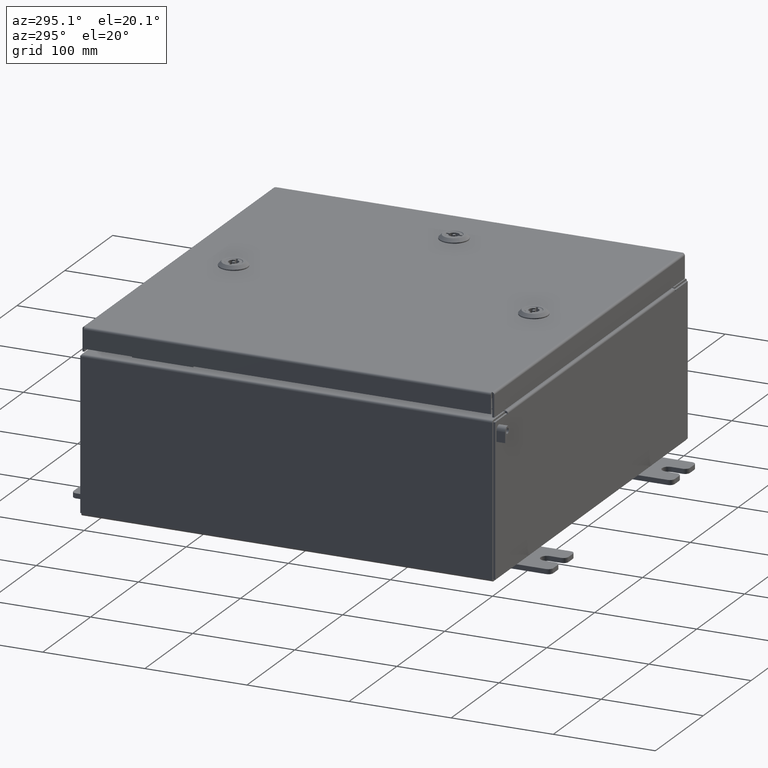
[diagram: clean part render]
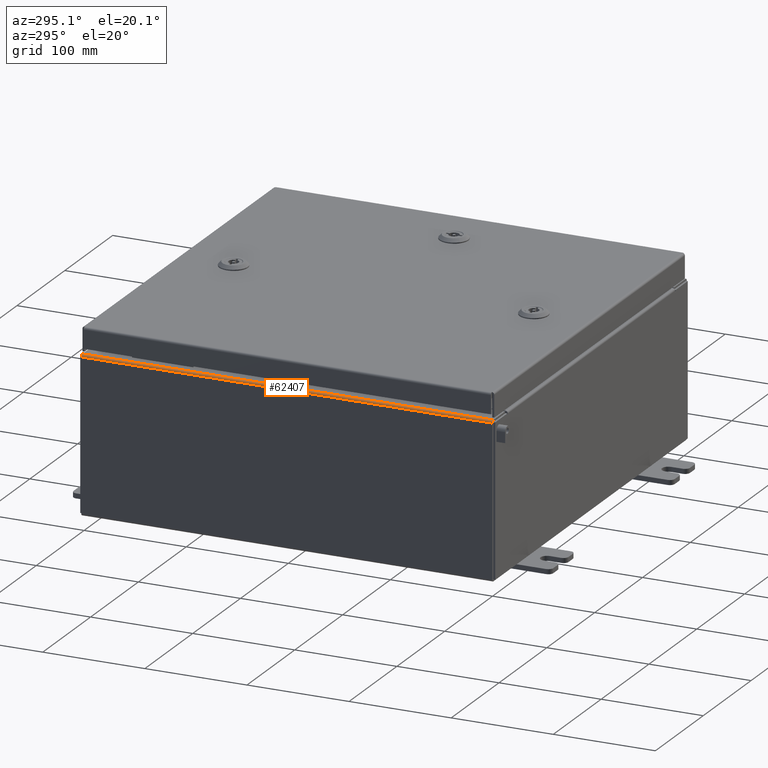
[diagram: same view with one face highlighted and labeled with its STEP entity id]
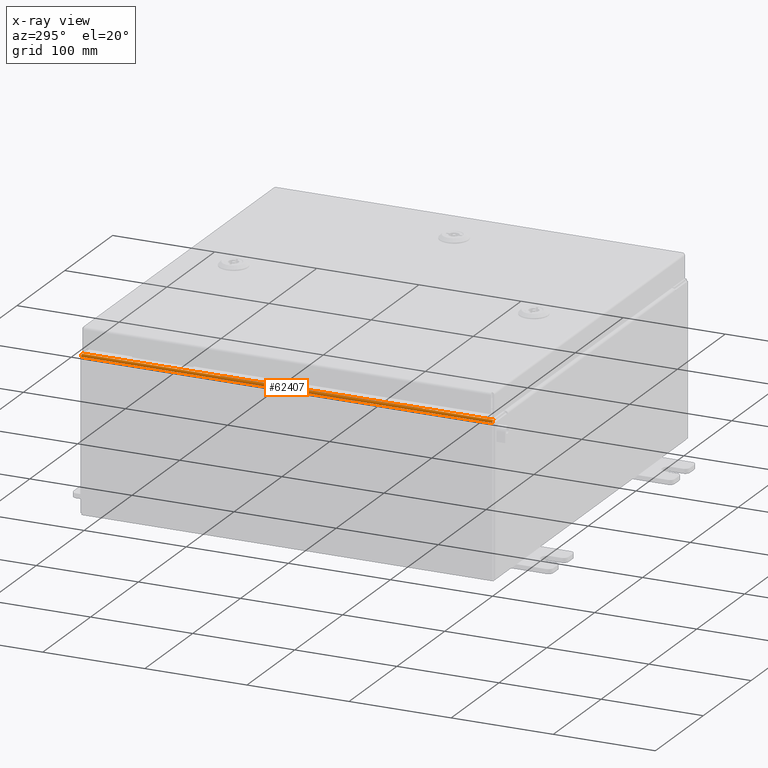
[diagram: x-ray of the same camera — body ghosted, the highlighted face saturated]
A machine part, auxiliary view. The second image highlights one B-rep face of the part: STEP entity #62407.
The next image is the same camera in x-ray: the body ghosted, the highlighted face saturated — about 0% of this face is hidden behind the body in this view.
In plain terms, the highlighted cylindrical surface (edge-blend (fillet) strip) has radius 2.2276 mm, axis along (-0, -1, -0).
Its self-contained STEP definition (entity closure, byte-faithful):
#732 = ORIENTED_EDGE ( 'NONE', *, *, #58221, .F. ) ;
#1132 = DIRECTION ( 'NONE',  ( 0.0000000000000000000, 1.000000000000000000, 0.0000000000000000000 ) ) ;
#6314 = CYLINDRICAL_SURFACE ( 'NONE', #54786, 0.08770000000000026400 ) ;
#9516 = CARTESIAN_POINT ( 'NONE',  ( -7.912300000000022300, -7.925300000000000900, 5.837599999999999200 ) ) ;
#11844 = CARTESIAN_POINT ( 'NONE',  ( -8.000000000000021300, 7.925299999999998200, 5.837599999999999200 ) ) ;
#13309 = CARTESIAN_POINT ( 'NONE',  ( -7.912300000000022300, -7.925300000000000000, 5.837599999999999200 ) ) ;
#17670 = CARTESIAN_POINT ( 'NONE',  ( -8.000000000000023100, -7.925300000000000900, 5.837599999999999200 ) ) ;
#18170 = DIRECTION ( 'NONE',  ( 0.0000000000000000000, 0.0000000000000000000, -1.000000000000000000 ) ) ;
#18240 = EDGE_CURVE ( 'NONE', #36179, #30319, #48500, .T. ) ;
#22539 = DIRECTION ( 'NONE',  ( 0.0000000000000000000, 1.000000000000000000, 0.0000000000000000000 ) ) ;
#22542 = VERTEX_POINT ( 'NONE', #11844 ) ;
#22624 = CIRCLE ( 'NONE', #35014, 0.08770000000000026400 ) ;
#22788 = EDGE_CURVE ( 'NONE', #36179, #31703, #22624, .T. ) ;
#23082 = AXIS2_PLACEMENT_3D ( 'NONE', #30075, #1132, #34930 ) ;
#27821 = CIRCLE ( 'NONE', #23082, 0.08770000000000026400 ) ;
#29264 = ORIENTED_EDGE ( 'NONE', *, *, #18240, .T. ) ;
#29877 = VECTOR ( 'NONE', #22539, 39.37007874015748100 ) ;
#30075 = CARTESIAN_POINT ( 'NONE',  ( -7.912300000000022300, 7.925299999999998200, 5.837599999999999200 ) ) ;
#30319 = VERTEX_POINT ( 'NONE', #51538 ) ;
#31412 = LINE ( 'NONE', #17670, #29877 ) ;
#31703 = VERTEX_POINT ( 'NONE', #43797 ) ;
#32039 = FACE_OUTER_BOUND ( 'NONE', #34856, .T. ) ;
#34856 = EDGE_LOOP ( 'NONE', ( #732, #38161, #29264, #55545 ) ) ;
#34930 = DIRECTION ( 'NONE',  ( 0.0000000000000000000, 0.0000000000000000000, -1.000000000000000000 ) ) ;
#35014 = AXIS2_PLACEMENT_3D ( 'NONE', #13309, #47134, #18170 ) ;
#35607 = VECTOR ( 'NONE', #45166, 39.37007874015748100 ) ;
#36179 = VERTEX_POINT ( 'NONE', #52899 ) ;
#38161 = ORIENTED_EDGE ( 'NONE', *, *, #22788, .F. ) ;
#43172 = DIRECTION ( 'NONE',  ( -0.0000000000000000000, -1.000000000000000000, -0.0000000000000000000 ) ) ;
#43376 = DIRECTION ( 'NONE',  ( -1.245996804407870000E-014, 0.0000000000000000000, 1.000000000000000000 ) ) ;
#43797 = CARTESIAN_POINT ( 'NONE',  ( -8.000000000000023100, -7.925300000000000000, 5.837599999999999200 ) ) ;
#45166 = DIRECTION ( 'NONE',  ( 6.893992640440775600E-017, 1.000000000000000000, 5.405222621642897500E-031 ) ) ;
#47134 = DIRECTION ( 'NONE',  ( -0.0000000000000000000, -1.000000000000000000, -0.0000000000000000000 ) ) ;
#47243 = EDGE_CURVE ( 'NONE', #22542, #30319, #27821, .T. ) ;
#48500 = LINE ( 'NONE', #54484, #35607 ) ;
#51538 = CARTESIAN_POINT ( 'NONE',  ( -7.912300000000022300, 7.925299999999998200, 5.925299999999999100 ) ) ;
#52899 = CARTESIAN_POINT ( 'NONE',  ( -7.912300000000022300, -7.925300000000000000, 5.925299999999999100 ) ) ;
#54484 = CARTESIAN_POINT ( 'NONE',  ( -7.912300000000021400, 7.925299999999998200, 5.925299999999999100 ) ) ;
#54786 = AXIS2_PLACEMENT_3D ( 'NONE', #9516, #43172, #43376 ) ;
#55545 = ORIENTED_EDGE ( 'NONE', *, *, #47243, .F. ) ;
#58221 = EDGE_CURVE ( 'NONE', #31703, #22542, #31412, .T. ) ;
#62407 = ADVANCED_FACE ( 'NONE', ( #32039 ), #6314, .T. ) ;